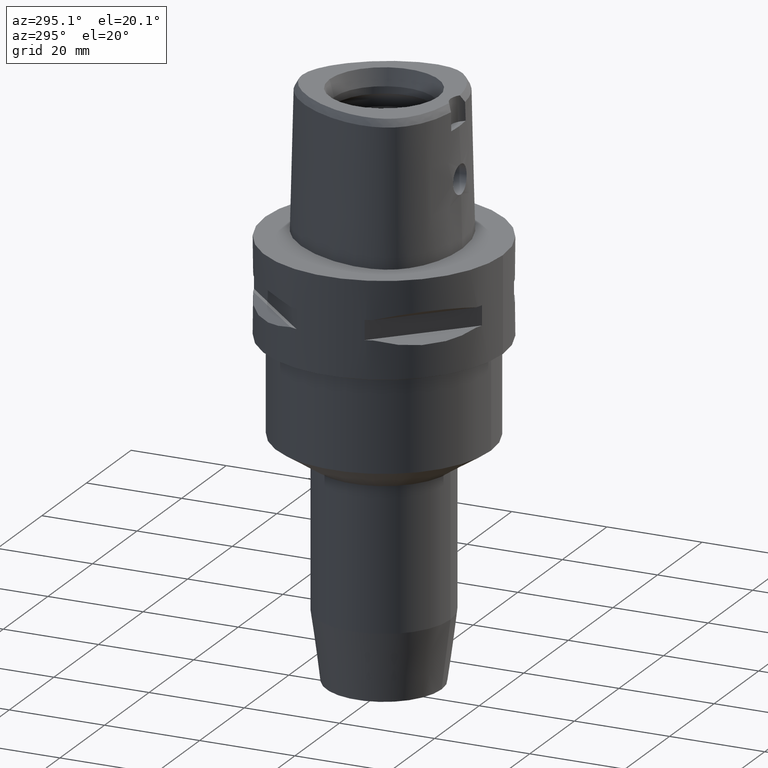
[diagram: clean part render]
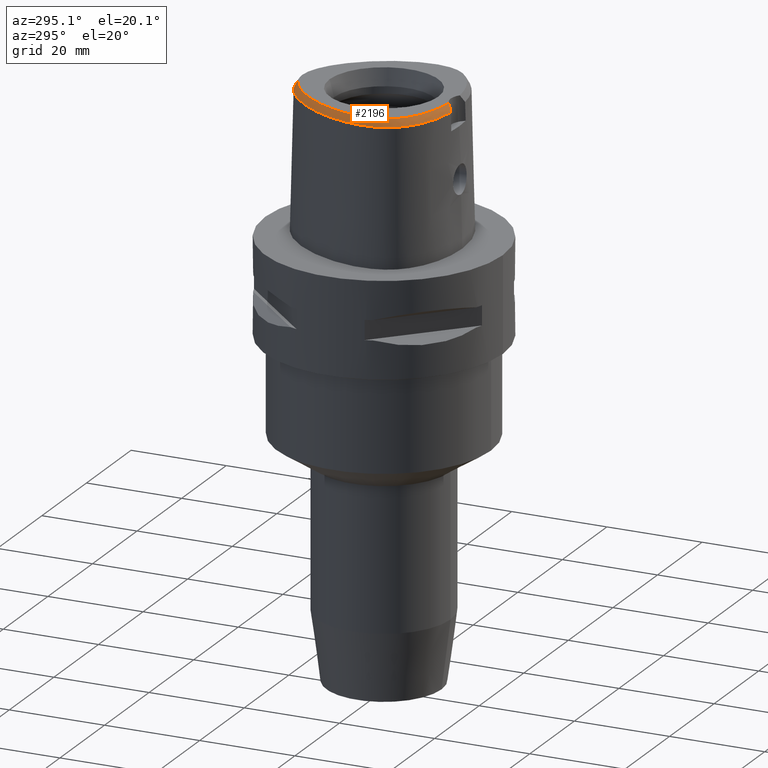
[diagram: same view with one face highlighted and labeled with its STEP entity id]
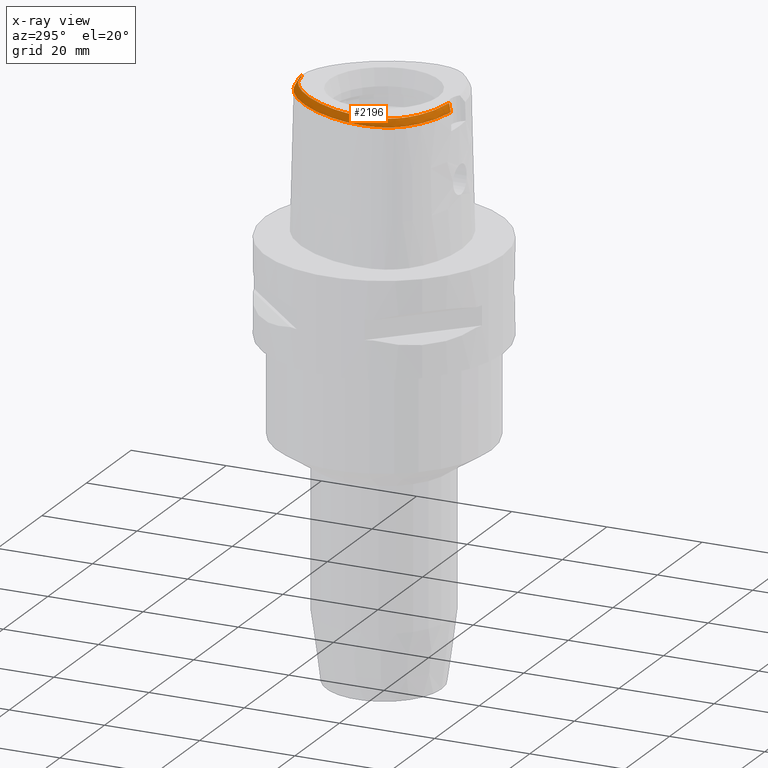
[diagram: x-ray of the same camera — body ghosted, the highlighted face saturated]
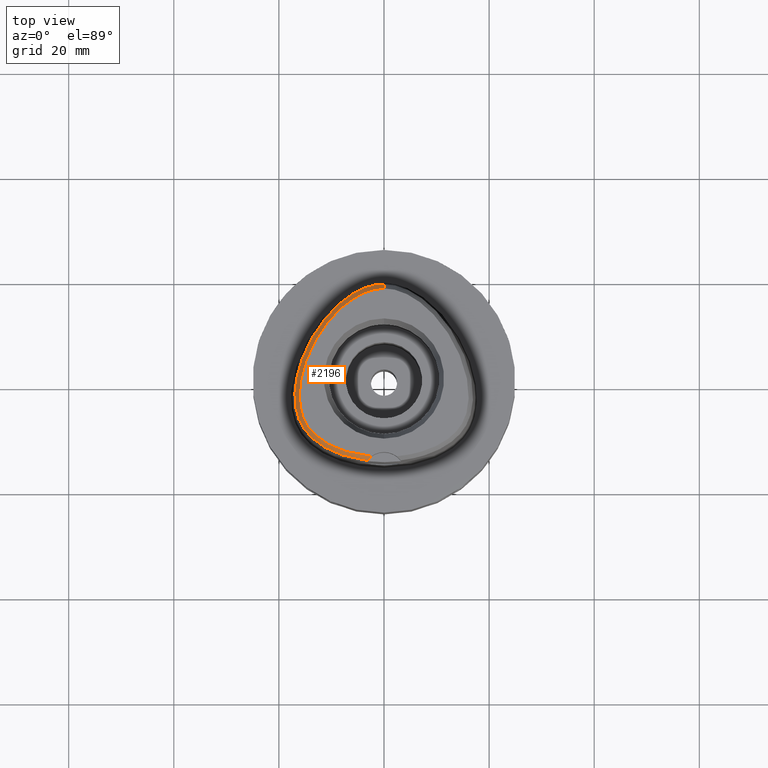
[diagram: same view with one face highlighted and labeled with its STEP entity id]
A machine part, auxiliary view. The second image highlights one B-rep face of the part: STEP entity #2196.
The next image is the same camera in x-ray: the body ghosted, the highlighted face saturated — about 0% of this face is hidden behind the body in this view.
A second angle (top view) of the same face is appended — the face is thin or edge-on in the first view.
In plain terms, the highlighted face is a freeform B-spline surface patch.
Its self-contained STEP definition (entity closure, byte-faithful):
#26=CARTESIAN_POINT('',(-2.406542353495E0,-1.480491723099E1,3.E1));
#27=CARTESIAN_POINT('',(-3.124280308598E0,-1.473992819785E1,3.E1));
#28=CARTESIAN_POINT('',(-4.482129191360E0,-1.455857893085E1,3.E1));
#29=CARTESIAN_POINT('',(-6.327445403866E0,-1.415782555515E1,3.E1));
#30=CARTESIAN_POINT('',(-7.870243883043E0,-1.369377426672E1,3.E1));
#31=CARTESIAN_POINT('',(-9.231467156002E0,-1.317094065721E1,3.E1));
#32=CARTESIAN_POINT('',(-1.045733358478E1,-1.258499059572E1,3.E1));
#33=CARTESIAN_POINT('',(-1.157007313943E1,-1.193148468521E1,3.E1));
#34=CARTESIAN_POINT('',(-1.255251033142E1,-1.122226372478E1,3.E1));
#35=CARTESIAN_POINT('',(-1.337000972227E1,-1.049821937481E1,3.E1));
#36=CARTESIAN_POINT('',(-1.404567229894E1,-9.764465763848E0,3.E1));
#37=CARTESIAN_POINT('',(-1.459644356703E1,-9.024038488283E0,3.E1));
#38=CARTESIAN_POINT('',(-1.504304321584E1,-8.266957290498E0,3.E1));
#39=CARTESIAN_POINT('',(-1.541927914616E1,-7.438179944706E0,3.E1));
#40=CARTESIAN_POINT('',(-1.572942560697E1,-6.506082303537E0,3.E1));
#41=CARTESIAN_POINT('',(-1.596206562176E1,-5.462853032253E0,3.E1));
#42=CARTESIAN_POINT('',(-1.610455206020E1,-4.273801693991E0,3.E1));
#43=CARTESIAN_POINT('',(-1.613413387002E1,-2.992943590306E0,3.E1));
#44=CARTESIAN_POINT('',(-1.604925454505E1,-1.655013683737E0,3.E1));
#45=CARTESIAN_POINT('',(-1.584443506800E1,-2.321231851405E-1,3.E1));
#46=CARTESIAN_POINT('',(-1.550101450717E1,1.313413412533E0,3.E1));
#47=CARTESIAN_POINT('',(-1.496782748450E1,3.066927206117E0,3.E1));
#48=CARTESIAN_POINT('',(-1.420409256541E1,4.992995084572E0,3.E1));
#49=CARTESIAN_POINT('',(-1.325457255906E1,6.910954296078E0,3.E1));
#50=CARTESIAN_POINT('',(-1.214712916254E1,8.759300706921E0,3.E1));
#51=CARTESIAN_POINT('',(-1.091556623872E1,1.048294531037E1,3.E1));
#52=CARTESIAN_POINT('',(-9.628013595519E0,1.200251913774E1,3.E1));
#53=CARTESIAN_POINT('',(-8.411861044418E0,1.322342138695E1,3.E1));
#54=CARTESIAN_POINT('',(-7.272356739526E0,1.420775433743E1,3.E1));
#55=CARTESIAN_POINT('',(-6.143941686487E0,1.504030886902E1,3.E1));
#56=CARTESIAN_POINT('',(-5.018973255518E0,1.573434444863E1,3.E1));
#57=CARTESIAN_POINT('',(-3.904394160620E0,1.629034370854E1,3.E1));
#58=CARTESIAN_POINT('',(-2.836073640816E0,1.669857766875E1,3.E1));
#59=CARTESIAN_POINT('',(-1.839809277755E0,1.696769935325E1,3.E1));
#60=CARTESIAN_POINT('',(-9.009153707972E-1,1.712038212244E1,3.E1));
#61=CARTESIAN_POINT('',(-2.958620069494E-1,1.715328888648E1,3.E1));
#62=CARTESIAN_POINT('',(-6.301949014352E-11,1.715328888648E1,3.E1));
#175=CARTESIAN_POINT('',(-2.406542353495E0,-1.480491723099E1,3.E1));
#176=CARTESIAN_POINT('',(-2.503856434639E0,-1.487821438001E1,2.985403523738E1));
#177=CARTESIAN_POINT('',(-2.689490258159E0,-1.503207885331E1,2.954895898762E1));
#178=CARTESIAN_POINT('',(-2.939608490909E0,-1.527959822917E1,2.906287623895E1));
#179=CARTESIAN_POINT('',(-3.095067552108E0,-1.546322947160E1,2.870597118540E1));
#180=CARTESIAN_POINT('',(-3.168920966623E0,-1.555911077539E1,2.852071192347E1));
#185=CARTESIAN_POINT('',(-3.168920966623E0,-1.555911077539E1,2.852071192347E1));
#186=CARTESIAN_POINT('',(-3.884018424515E0,-1.547576349617E1,2.852068042717E1));
#187=CARTESIAN_POINT('',(-5.247695189909E0,-1.525826336469E1,2.852072903404E1));
#188=CARTESIAN_POINT('',(-7.068919529175E0,-1.481516736492E1,2.852071237294E1));
#189=CARTESIAN_POINT('',(-8.613929883140E0,-1.431004507675E1,2.852073019963E1));
#190=CARTESIAN_POINT('',(-9.995356613935E0,-1.373902700220E1,2.852071186279E1));
#191=CARTESIAN_POINT('',(-1.124982998274E1,-1.309688046516E1,2.852071937654E1));
#192=CARTESIAN_POINT('',(-1.238711608372E1,-1.238104996002E1,2.852071750255E1));
#193=CARTESIAN_POINT('',(-1.336108389170E1,-1.162936731246E1,2.852072164498E1));
#194=CARTESIAN_POINT('',(-1.417450314764E1,-1.086425323022E1,2.852072209935E1));
#195=CARTESIAN_POINT('',(-1.485394147480E1,-1.008281603057E1,2.852069333345E1));
#196=CARTESIAN_POINT('',(-1.541186317733E1,-9.290473508141E0,2.852074843830E1));
#197=CARTESIAN_POINT('',(-1.587337708806E1,-8.462915439459E0,2.852071991258E1));
#198=CARTESIAN_POINT('',(-1.626140134066E1,-7.557337614524E0,2.852071163513E1));
#199=CARTESIAN_POINT('',(-1.657667771845E1,-6.548498503859E0,2.852071897347E1));
#200=CARTESIAN_POINT('',(-1.680798800989E1,-5.428019071697E0,2.852071891157E1));
#201=CARTESIAN_POINT('',(-1.694253977910E1,-4.169586378050E0,2.852072184503E1));
#202=CARTESIAN_POINT('',(-1.695949206263E1,-2.802998814675E0,2.852071756393E1));
#203=CARTESIAN_POINT('',(-1.685344435E1,-1.375161839891E0,2.852071128356E1));
#204=CARTESIAN_POINT('',(-1.662096442905E1,1.267079546153E-1,2.852072422836E1));
#205=CARTESIAN_POINT('',(-1.624049462060E1,1.762577795572E0,2.852072177717E1));
#206=CARTESIAN_POINT('',(-1.564670362716E1,3.634253181313E0,2.852069903337E1));
#207=CARTESIAN_POINT('',(-1.483751327191E1,5.603489300116E0,2.852072652030E1));
#208=CARTESIAN_POINT('',(-1.384825157337E1,7.550865350083E0,2.852068894743E1));
#209=CARTESIAN_POINT('',(-1.270048005534E1,9.425038874084E0,2.852072872519E1));
#210=CARTESIAN_POINT('',(-1.143486269483E1,1.116436229673E1,2.852071245700E1));
#211=CARTESIAN_POINT('',(-1.010132644102E1,1.271225842705E1,2.852072030872E1));
#212=CARTESIAN_POINT('',(-8.842378725687E0,1.395492710839E1,2.852071211598E1));
#213=CARTESIAN_POINT('',(-7.654868319508E0,1.496335772709E1,2.852072067069E1));
#214=CARTESIAN_POINT('',(-6.463517638644E0,1.582517546606E1,2.852071712933E1));
#215=CARTESIAN_POINT('',(-5.272808361515E0,1.654168821671E1,2.852072805240E1));
#216=CARTESIAN_POINT('',(-4.105550930552E0,1.710690949129E1,2.852071405181E1));
#217=CARTESIAN_POINT('',(-2.992312216150E0,1.751912247566E1,2.852072610469E1));
#218=CARTESIAN_POINT('',(-1.943886603984E0,1.779364421749E1,2.852074324146E1));
#219=CARTESIAN_POINT('',(-9.440104920872E-1,1.794938959237E1,2.852060108563E1));
#220=CARTESIAN_POINT('',(-3.160365891633E-1,1.798202997910E1,2.852071728568E1));
#221=CARTESIAN_POINT('',(-3.033118856553E-11,1.798202997910E1,
2.852071728569E1));
#226=DIRECTION('',(-1.927820962693E-11,-4.887572537803E-1,8.724198226067E-1));
#227=VECTOR('',#226,1.695608783729E0);
#228=CARTESIAN_POINT('',(-3.033118856553E-11,1.798202997910E1,
2.852071728569E1));
#229=LINE('',#228,#227);
#233=CARTESIAN_POINT('',(-3.168920966623E0,-1.555911077539E1,2.852071192347E1));
#1521=CARTESIAN_POINT('',(-2.406542353497E0,-1.480491723099E1,3.E1));
#1523=VERTEX_POINT('',#1521);
#1524=VERTEX_POINT('',#62);
#1533=VERTEX_POINT('',#233);
#1534=CARTESIAN_POINT('',(-3.033118856553E-11,1.798202997910E1,
2.852071728569E1));
#1535=VERTEX_POINT('',#1534);
#1964=CARTESIAN_POINT('',(4.589239217477E-1,1.705930169011E1,3.014606763203E1));
#1965=CARTESIAN_POINT('',(4.771634375231E-1,1.738959599961E1,2.955557378988E1));
#1966=CARTESIAN_POINT('',(4.954029532985E-1,1.771989030912E1,2.896507994772E1));
#1967=CARTESIAN_POINT('',(5.136424690739E-1,1.805018461862E1,2.837458610557E1));
#1968=CARTESIAN_POINT('',(3.021121023241E-1,1.706734038862E1,3.014606760084E1));
#1969=CARTESIAN_POINT('',(3.143282988974E-1,1.739798210280E1,2.955557388480E1));
#1970=CARTESIAN_POINT('',(3.265444954708E-1,1.772862381699E1,2.896508016875E1));
#1971=CARTESIAN_POINT('',(3.387606920441E-1,1.805926553117E1,2.837458645271E1));
#1972=CARTESIAN_POINT('',(-4.062840995377E-2,1.707663431066E1,
3.014606757844E1));
#1973=CARTESIAN_POINT('',(-4.217900351867E-2,1.740766328035E1,
2.955557395296E1));
#1974=CARTESIAN_POINT('',(-4.372959708356E-2,1.773869225005E1,
2.896508032747E1));
#1975=CARTESIAN_POINT('',(-4.528019064846E-2,1.806972121974E1,
2.837458670199E1));
#1976=CARTESIAN_POINT('',(-5.621756140505E-1,1.705843619110E1,
3.014606762231E1));
#1977=CARTESIAN_POINT('',(-5.853204075292E-1,1.738870688866E1,
2.955557381950E1));
#1978=CARTESIAN_POINT('',(-6.084652010080E-1,1.771897758622E1,
2.896508001669E1));
#1979=CARTESIAN_POINT('',(-6.316099944867E-1,1.804924828379E1,
2.837458621389E1));
#1980=CARTESIAN_POINT('',(-1.148807938986E0,1.699751578038E1,3.014606762810E1));
#1981=CARTESIAN_POINT('',(-1.194665299434E0,1.732539664583E1,2.955557380186E1));
#1982=CARTESIAN_POINT('',(-1.240522659881E0,1.765327751128E1,2.896507997561E1));
#1983=CARTESIAN_POINT('',(-1.286380020328E0,1.798115837673E1,2.837458614937E1));
#1984=CARTESIAN_POINT('',(-1.756045937615E0,1.689181558889E1,3.014606757344E1));
#1985=CARTESIAN_POINT('',(-1.824101746872E0,1.721581009458E1,2.955557396817E1));
#1986=CARTESIAN_POINT('',(-1.892157556129E0,1.753980460028E1,2.896508036291E1));
#1987=CARTESIAN_POINT('',(-1.960213365386E0,1.786379910597E1,2.837458675764E1));
#1988=CARTESIAN_POINT('',(-2.389483928325E0,1.673708003080E1,3.014606761979E1));
#1989=CARTESIAN_POINT('',(-2.479056227867E0,1.705578794601E1,2.955557382715E1));
#1990=CARTESIAN_POINT('',(-2.568628527408E0,1.737449586122E1,2.896508003451E1));
#1991=CARTESIAN_POINT('',(-2.658200826949E0,1.769320377643E1,2.837458624187E1));
#1992=CARTESIAN_POINT('',(-3.049892749213E0,1.652850246772E1,3.014606769442E1));
#1993=CARTESIAN_POINT('',(-3.160196292899E0,1.684063289022E1,2.955557360011E1));
#1994=CARTESIAN_POINT('',(-3.270499836585E0,1.715276331273E1,2.896507950579E1));
#1995=CARTESIAN_POINT('',(-3.380803380272E0,1.746489373523E1,2.837458541148E1));
#1996=CARTESIAN_POINT('',(-3.739707454830E0,1.626022390672E1,3.014606751770E1));
#1997=CARTESIAN_POINT('',(-3.869891556728E0,1.656458846622E1,2.955557413775E1));
#1998=CARTESIAN_POINT('',(-4.000075658626E0,1.686895302573E1,2.896508075779E1));
#1999=CARTESIAN_POINT('',(-4.130259760524E0,1.717331758524E1,2.837458737783E1));
#2000=CARTESIAN_POINT('',(-4.461786381193E0,1.592503528634E1,3.014606714188E1));
#2001=CARTESIAN_POINT('',(-4.610854850908E0,1.622059792561E1,2.955557528123E1));
#2002=CARTESIAN_POINT('',(-4.759923320623E0,1.651616056487E1,2.896508342057E1));
#2003=CARTESIAN_POINT('',(-4.908991790338E0,1.681172320414E1,2.837459155991E1));
#2004=CARTESIAN_POINT('',(-5.216571988594E0,1.551578810815E1,3.014606702734E1));
#2005=CARTESIAN_POINT('',(-5.383528418402E0,1.580161661174E1,2.955557562976E1));
#2006=CARTESIAN_POINT('',(-5.550484848210E0,1.608744511533E1,2.896508423218E1));
#2007=CARTESIAN_POINT('',(-5.717441278019E0,1.637327361892E1,2.837459283460E1));
#2008=CARTESIAN_POINT('',(-6.001900839393E0,1.502591021893E1,3.014606725617E1));
#2009=CARTESIAN_POINT('',(-6.185720720064E0,1.530118548497E1,2.955557493350E1));
#2010=CARTESIAN_POINT('',(-6.369540600735E0,1.557646075102E1,2.896508261082E1));
#2011=CARTESIAN_POINT('',(-6.553360481406E0,1.585173601706E1,2.837459028815E1));
#2012=CARTESIAN_POINT('',(-6.813333767988E0,1.445006178676E1,3.014606765864E1));
#2013=CARTESIAN_POINT('',(-7.012997946743E0,1.471405984806E1,2.955557370897E1));
#2014=CARTESIAN_POINT('',(-7.212662125498E0,1.497805790936E1,2.896507975931E1));
#2015=CARTESIAN_POINT('',(-7.412326304253E0,1.524205597065E1,2.837458580965E1));
#2016=CARTESIAN_POINT('',(-7.647582973534E0,1.378179698792E1,3.014606755363E1));
#2017=CARTESIAN_POINT('',(-7.862083420111E0,1.403387801428E1,2.955557402845E1));
#2018=CARTESIAN_POINT('',(-8.076583866689E0,1.428595904064E1,2.896508050326E1));
#2019=CARTESIAN_POINT('',(-8.291084313266E0,1.453804006700E1,2.837458697808E1));
#2020=CARTESIAN_POINT('',(-8.500451953816E0,1.301506044805E1,3.014606736919E1));
#2021=CARTESIAN_POINT('',(-8.728765177906E0,1.325469200917E1,2.955557458964E1));
#2022=CARTESIAN_POINT('',(-8.957078401996E0,1.349432357029E1,2.896508181009E1));
#2023=CARTESIAN_POINT('',(-9.185391626086E0,1.373395513141E1,2.837458903054E1));
#2024=CARTESIAN_POINT('',(-9.361199438573E0,1.214969638013E1,3.014606744072E1));
#2025=CARTESIAN_POINT('',(-9.602360188752E0,1.237638533707E1,2.955557437198E1));
#2026=CARTESIAN_POINT('',(-9.843520938932E0,1.260307429400E1,2.896508130323E1));
#2027=CARTESIAN_POINT('',(-1.008468168911E1,1.282976325094E1,2.837458823448E1));
#2028=CARTESIAN_POINT('',(-1.021647140019E1,1.119002785690E1,3.014606764958E1));
#2029=CARTESIAN_POINT('',(-1.046956249638E1,1.140330715908E1,2.955557373651E1));
#2030=CARTESIAN_POINT('',(-1.072265359258E1,1.161658646127E1,2.896507982344E1));
#2031=CARTESIAN_POINT('',(-1.097574468877E1,1.182986576345E1,2.837458591037E1));
#2032=CARTESIAN_POINT('',(-1.105366809748E1,1.014182833152E1,3.014606753605E1));
#2033=CARTESIAN_POINT('',(-1.131779523682E1,1.034127126510E1,2.955557408195E1));
#2034=CARTESIAN_POINT('',(-1.158192237616E1,1.054071419869E1,2.896508062784E1));
#2035=CARTESIAN_POINT('',(-1.184604951551E1,1.074015713227E1,2.837458717374E1));
#2036=CARTESIAN_POINT('',(-1.185928016106E1,9.014736968872E0,3.014606748887E1));
#2037=CARTESIAN_POINT('',(-1.213359137969E1,9.199918733822E0,2.955557422550E1));
#2038=CARTESIAN_POINT('',(-1.240790259831E1,9.385100498772E0,2.896508096213E1));
#2039=CARTESIAN_POINT('',(-1.268221381694E1,9.570282263722E0,2.837458769877E1));
#2040=CARTESIAN_POINT('',(-1.261630581567E1,7.827396562964E0,3.014606760207E1));
#2041=CARTESIAN_POINT('',(-1.289998216810E1,7.997885096357E0,2.955557388106E1));
#2042=CARTESIAN_POINT('',(-1.318365852053E1,8.168373629749E0,2.896508016006E1));
#2043=CARTESIAN_POINT('',(-1.346733487297E1,8.338862163141E0,2.837458643905E1));
#2044=CARTESIAN_POINT('',(-1.331210267030E1,6.597285589285E0,3.014606756977E1));
#2045=CARTESIAN_POINT('',(-1.360436698396E1,6.752592743745E0,2.955557397934E1));
#2046=CARTESIAN_POINT('',(-1.389663129761E1,6.907899898206E0,2.896508038890E1));
#2047=CARTESIAN_POINT('',(-1.418889561127E1,7.063207052667E0,2.837458679847E1));
#2048=CARTESIAN_POINT('',(-1.393736735049E1,5.341347009540E0,3.014606751321E1));
#2049=CARTESIAN_POINT('',(-1.423740958872E1,5.481039245897E0,2.955557415143E1));
#2050=CARTESIAN_POINT('',(-1.453745182695E1,5.620731482254E0,2.896508078965E1));
#2051=CARTESIAN_POINT('',(-1.483749406519E1,5.760423718611E0,2.837458742787E1));
#2052=CARTESIAN_POINT('',(-1.448303032605E1,4.081853429295E0,3.014606761905E1));
#2053=CARTESIAN_POINT('',(-1.479006636371E1,4.205426881974E0,2.955557382941E1));
#2054=CARTESIAN_POINT('',(-1.509710240136E1,4.329000334652E0,2.896508003977E1));
#2055=CARTESIAN_POINT('',(-1.540413843902E1,4.452573787331E0,2.837458625014E1));
#2056=CARTESIAN_POINT('',(-1.494351022053E1,2.840692792280E0,3.014606760206E1));
#2057=CARTESIAN_POINT('',(-1.525674697938E1,2.947589651795E0,2.955557388111E1));
#2058=CARTESIAN_POINT('',(-1.556998373822E1,3.054486511310E0,2.896508016017E1));
#2059=CARTESIAN_POINT('',(-1.588322049707E1,3.161383370825E0,2.837458643922E1));
#2060=CARTESIAN_POINT('',(-1.531846819872E1,1.632891578501E0,3.014606728628E1));
#2061=CARTESIAN_POINT('',(-1.563706592697E1,1.722574468793E0,2.955557484189E1));
#2062=CARTESIAN_POINT('',(-1.595566365523E1,1.812257359085E0,2.896508239749E1));
#2063=CARTESIAN_POINT('',(-1.627426138348E1,1.901940249377E0,2.837458995310E1));
#2064=CARTESIAN_POINT('',(-1.560987195784E1,4.719144669458E-1,
3.014606724625E1));
#2065=CARTESIAN_POINT('',(-1.593295715421E1,5.438010546152E-1,
2.955557496368E1));
#2066=CARTESIAN_POINT('',(-1.625604235059E1,6.156876422845E-1,
2.896508268111E1));
#2067=CARTESIAN_POINT('',(-1.657912754697E1,6.875742299538E-1,
2.837459039854E1));
#2068=CARTESIAN_POINT('',(-1.582143526896E1,-6.294839144265E-1,
3.014606750670E1));
#2069=CARTESIAN_POINT('',(-1.614807622287E1,-5.759791666535E-1,
2.955557417123E1));
#2070=CARTESIAN_POINT('',(-1.647471717679E1,-5.224744188805E-1,
2.896508083577E1));
#2071=CARTESIAN_POINT('',(-1.680135813070E1,-4.689696711075E-1,
2.837458750030E1));
#2072=CARTESIAN_POINT('',(-1.595940317007E1,-1.665032174553E0,
3.014606765248E1));
#2073=CARTESIAN_POINT('',(-1.628860303853E1,-1.630535683332E0,
2.955557372769E1));
#2074=CARTESIAN_POINT('',(-1.661780290699E1,-1.596039192111E0,
2.896507980291E1));
#2075=CARTESIAN_POINT('',(-1.694700277545E1,-1.561542700890E0,
2.837458587813E1));
#2076=CARTESIAN_POINT('',(-1.603104292874E1,-2.633609564887E0,
3.014606760533E1));
#2077=CARTESIAN_POINT('',(-1.636171552055E1,-2.618643191223E0,
2.955557387113E1));
#2078=CARTESIAN_POINT('',(-1.669238811237E1,-2.603676817560E0,
2.896508013694E1));
#2079=CARTESIAN_POINT('',(-1.702306070418E1,-2.588710443896E0,
2.837458640274E1));
#2080=CARTESIAN_POINT('',(-1.604355954477E1,-3.534613962801E0,
3.014606758107E1));
#2081=CARTESIAN_POINT('',(-1.637454099120E1,-3.539720092955E0,
2.955557394498E1));
#2082=CARTESIAN_POINT('',(-1.670552243762E1,-3.544826223109E0,
2.896508030889E1));
#2083=CARTESIAN_POINT('',(-1.703650388405E1,-3.549932353263E0,
2.837458667280E1));
#2084=CARTESIAN_POINT('',(-1.600386878937E1,-4.369987092503E0,
3.014606751303E1));
#2085=CARTESIAN_POINT('',(-1.633390673604E1,-4.395598081921E0,
2.955557415198E1));
#2086=CARTESIAN_POINT('',(-1.666394468270E1,-4.421209071339E0,
2.896508079093E1));
#2087=CARTESIAN_POINT('',(-1.699398262937E1,-4.446820060757E0,
2.837458742988E1));
#2088=CARTESIAN_POINT('',(-1.591841593839E1,-5.142336147147E0,
3.014606759563E1));
#2089=CARTESIAN_POINT('',(-1.624617622280E1,-5.188821740647E0,
2.955557390066E1));
#2090=CARTESIAN_POINT('',(-1.657393650720E1,-5.235307334148E0,
2.896508020569E1));
#2091=CARTESIAN_POINT('',(-1.690169679161E1,-5.281792927648E0,
2.837458651072E1));
#2092=CARTESIAN_POINT('',(-1.579284465989E1,-5.855381893573E0,
3.014606762062E1));
#2093=CARTESIAN_POINT('',(-1.611691212834E1,-5.923016076839E0,
2.955557382462E1));
#2094=CARTESIAN_POINT('',(-1.644097959680E1,-5.990650260104E0,
2.896508002862E1));
#2095=CARTESIAN_POINT('',(-1.676504706525E1,-6.058284443370E0,
2.837458623262E1));
#2096=CARTESIAN_POINT('',(-1.563176695484E1,-6.514311714755E0,
3.014606761136E1));
#2097=CARTESIAN_POINT('',(-1.595066484923E1,-6.603217105771E0,
2.955557385279E1));
#2098=CARTESIAN_POINT('',(-1.626956274363E1,-6.692122496787E0,
2.896508009422E1));
#2099=CARTESIAN_POINT('',(-1.658846063803E1,-6.781027887802E0,
2.837458633565E1));
#2100=CARTESIAN_POINT('',(-1.543901061411E1,-7.123603479018E0,
3.014606757882E1));
#2101=CARTESIAN_POINT('',(-1.575120982130E1,-7.233775075570E0,
2.955557395181E1));
#2102=CARTESIAN_POINT('',(-1.606340902849E1,-7.343946672122E0,
2.896508032479E1));
#2103=CARTESIAN_POINT('',(-1.637560823569E1,-7.454118268674E0,
2.837458669778E1));
#2104=CARTESIAN_POINT('',(-1.521711080092E1,-7.688628602828E0,
3.014606756964E1));
#2105=CARTESIAN_POINT('',(-1.552105266650E1,-7.819887135189E0,
2.955557397972E1));
#2106=CARTESIAN_POINT('',(-1.582499453208E1,-7.951145667550E0,
2.896508038979E1));
#2107=CARTESIAN_POINT('',(-1.612893639766E1,-8.082404199910E0,
2.837458679987E1));
#2108=CARTESIAN_POINT('',(-1.496873659017E1,-8.212247512153E0,
3.014606763488E1));
#2109=CARTESIAN_POINT('',(-1.526288916935E1,-8.364206377603E0,
2.955557378125E1));
#2110=CARTESIAN_POINT('',(-1.555704174852E1,-8.516165243053E0,
2.896507992763E1));
#2111=CARTESIAN_POINT('',(-1.585119432770E1,-8.668124108503E0,
2.837458607400E1));
#2112=CARTESIAN_POINT('',(-1.469329792242E1,-8.702035653092E0,
3.014606759175E1));
#2113=CARTESIAN_POINT('',(-1.497597153349E1,-8.874413839438E0,
2.955557391248E1));
#2114=CARTESIAN_POINT('',(-1.525864514455E1,-9.046792025784E0,
2.896508023321E1));
#2115=CARTESIAN_POINT('',(-1.554131875562E1,-9.219170212130E0,
2.837458655394E1));
#2116=CARTESIAN_POINT('',(-1.437932952610E1,-9.179280562796E0,
3.014606761358E1));
#2117=CARTESIAN_POINT('',(-1.464932954746E1,-9.370882131644E0,
2.955557384602E1));
#2118=CARTESIAN_POINT('',(-1.491932956882E1,-9.562483700493E0,
2.896508007845E1));
#2119=CARTESIAN_POINT('',(-1.518932959017E1,-9.754085269341E0,
2.837458631088E1));
#2120=CARTESIAN_POINT('',(-1.401714700033E1,-9.655007395280E0,
3.014606755596E1));
#2121=CARTESIAN_POINT('',(-1.427335965199E1,-9.864680022944E0,
2.955557402134E1));
#2122=CARTESIAN_POINT('',(-1.452957230366E1,-1.007435265061E1,
2.896508048672E1));
#2123=CARTESIAN_POINT('',(-1.478578495532E1,-1.028402527827E1,
2.837458695209E1));
#2124=CARTESIAN_POINT('',(-1.360366820561E1,-1.012747698381E1,
3.014606760927E1));
#2125=CARTESIAN_POINT('',(-1.384509579514E1,-1.035400464891E1,
2.955557385915E1));
#2126=CARTESIAN_POINT('',(-1.408652338467E1,-1.058053231401E1,
2.896508010903E1));
#2127=CARTESIAN_POINT('',(-1.432795097420E1,-1.080705997911E1,
2.837458635891E1));
#2128=CARTESIAN_POINT('',(-1.313329843107E1,-1.059734978226E1,
3.014606761568E1));
#2129=CARTESIAN_POINT('',(-1.335912389705E1,-1.083942180609E1,
2.955557383965E1));
#2130=CARTESIAN_POINT('',(-1.358494936303E1,-1.108149382991E1,
2.896508006362E1));
#2131=CARTESIAN_POINT('',(-1.381077482901E1,-1.132356585374E1,
2.837458628758E1));
#2132=CARTESIAN_POINT('',(-1.260025529839E1,-1.106394944771E1,
3.014606761614E1));
#2133=CARTESIAN_POINT('',(-1.280980327647E1,-1.132022960674E1,
2.955557383826E1));
#2134=CARTESIAN_POINT('',(-1.301935125455E1,-1.157650976577E1,
2.896508006037E1));
#2135=CARTESIAN_POINT('',(-1.322889923263E1,-1.183278992481E1,
2.837458628249E1));
#2136=CARTESIAN_POINT('',(-1.199803300363E1,-1.152602128200E1,
3.014606752992E1));
#2137=CARTESIAN_POINT('',(-1.219077428024E1,-1.179515683600E1,
2.955557410059E1));
#2138=CARTESIAN_POINT('',(-1.238351555686E1,-1.206429239E1,2.896508067125E1));
#2139=CARTESIAN_POINT('',(-1.257625683347E1,-1.233342794400E1,
2.837458724191E1));
#2140=CARTESIAN_POINT('',(-1.132008066298E1,-1.198121081966E1,
3.014606754728E1));
#2141=CARTESIAN_POINT('',(-1.149563971513E1,-1.226184553464E1,
2.955557404777E1));
#2142=CARTESIAN_POINT('',(-1.167119876729E1,-1.254248024962E1,
2.896508054826E1));
#2143=CARTESIAN_POINT('',(-1.184675781944E1,-1.282311496460E1,
2.837458704874E1));
#2144=CARTESIAN_POINT('',(-1.056110733657E1,-1.242537947419E1,
3.014606760993E1));
#2145=CARTESIAN_POINT('',(-1.071919065307E1,-1.271620603585E1,
2.955557385715E1));
#2146=CARTESIAN_POINT('',(-1.087727396957E1,-1.300703259751E1,
2.896508010438E1));
#2147=CARTESIAN_POINT('',(-1.103535728606E1,-1.329785915916E1,
2.837458635161E1));
#2148=CARTESIAN_POINT('',(-9.715421921455E0,-1.285396584523E1,
3.014606762630E1));
#2149=CARTESIAN_POINT('',(-9.855889278186E0,-1.315368787459E1,
2.955557380737E1));
#2150=CARTESIAN_POINT('',(-9.996356634916E0,-1.345340990395E1,
2.896507998845E1));
#2151=CARTESIAN_POINT('',(-1.013682399165E1,-1.375313193332E1,
2.837458616953E1));
#2152=CARTESIAN_POINT('',(-8.779623225487E0,-1.326074171082E1,
3.014606760137E1));
#2153=CARTESIAN_POINT('',(-8.902366024216E0,-1.356813887121E1,
2.955557388322E1));
#2154=CARTESIAN_POINT('',(-9.025108822946E0,-1.387553603159E1,
2.896508016507E1));
#2155=CARTESIAN_POINT('',(-9.147851621676E0,-1.418293319198E1,
2.837458644693E1));
#2156=CARTESIAN_POINT('',(-7.750756044997E0,-1.363898685356E1,
3.014606731170E1));
#2157=CARTESIAN_POINT('',(-7.855788860016E0,-1.395286811971E1,
2.955557476455E1));
#2158=CARTESIAN_POINT('',(-7.960821675036E0,-1.426674938585E1,
2.896508221741E1));
#2159=CARTESIAN_POINT('',(-8.065854490055E0,-1.458063065200E1,
2.837458967026E1));
#2160=CARTESIAN_POINT('',(-6.628633839840E0,-1.398095409318E1,
3.014606724781E1));
#2161=CARTESIAN_POINT('',(-6.715992593733E0,-1.430019888844E1,
2.955557495896E1));
#2162=CARTESIAN_POINT('',(-6.803351347625E0,-1.461944368371E1,
2.896508267011E1));
#2163=CARTESIAN_POINT('',(-6.890710101518E0,-1.493868847897E1,
2.837459038125E1));
#2164=CARTESIAN_POINT('',(-5.420621925816E0,-1.427704546601E1,
3.014606750391E1));
#2165=CARTESIAN_POINT('',(-5.490373757087E0,-1.460058824705E1,
2.955557417975E1));
#2166=CARTESIAN_POINT('',(-5.560125588359E0,-1.492413102810E1,
2.896508085560E1));
#2167=CARTESIAN_POINT('',(-5.629877419630E0,-1.524767380914E1,
2.837458753145E1));
#2168=CARTESIAN_POINT('',(-4.137587918722E0,-1.451832659808E1,
3.014606765331E1));
#2169=CARTESIAN_POINT('',(-4.189770581019E0,-1.484515895416E1,
2.955557372518E1));
#2170=CARTESIAN_POINT('',(-4.241953243316E0,-1.517199131023E1,
2.896507979706E1));
#2171=CARTESIAN_POINT('',(-4.294135905613E0,-1.549882366630E1,
2.837458586894E1));
#2172=CARTESIAN_POINT('',(-3.113654928649E0,-1.465434343566E1,
3.014606754612E1));
#2173=CARTESIAN_POINT('',(-3.152551406530E0,-1.498293253787E1,
2.955557405130E1));
#2174=CARTESIAN_POINT('',(-3.191447884411E0,-1.531152164009E1,
2.896508055649E1));
#2175=CARTESIAN_POINT('',(-3.230344362293E0,-1.564011074230E1,
2.837458706167E1));
#2176=CARTESIAN_POINT('',(-2.368643380905E0,-1.472737181031E1,
3.014606752100E1));
#2177=CARTESIAN_POINT('',(-2.398087797648E0,-1.505688732829E1,
2.955557412775E1));
#2178=CARTESIAN_POINT('',(-2.427532214390E0,-1.538640284626E1,
2.896508073450E1));
#2179=CARTESIAN_POINT('',(-2.456976631132E0,-1.571591836423E1,
2.837458734126E1));
#2180=CARTESIAN_POINT('',(-2.079214427359E0,-1.475091258796E1,
3.014606752015E1));
#2181=CARTESIAN_POINT('',(-2.105020781599E0,-1.508072386527E1,
2.955557413033E1));
#2182=CARTESIAN_POINT('',(-2.130827135839E0,-1.541053514257E1,
2.896508074051E1));
#2183=CARTESIAN_POINT('',(-2.156633490078E0,-1.574034641988E1,
2.837458735069E1));
#2184=CARTESIAN_POINT('',(-1.918405020981E0,-1.476251065124E1,
3.014606752205E1));
#2185=CARTESIAN_POINT('',(-1.942198150463E0,-1.509246709972E1,
2.955557412451E1));
#2186=CARTESIAN_POINT('',(-1.965991279945E0,-1.542242354821E1,
2.896508072697E1));
#2187=CARTESIAN_POINT('',(-1.989784409428E0,-1.575237999669E1,
2.837458732943E1));
#2188=B_SPLINE_SURFACE_WITH_KNOTS('',3,3,((#1964,#1965,#1966,#1967),(#1968,
#1969,#1970,#1971),(#1972,#1973,#1974,#1975),(#1976,#1977,#1978,#1979),(#1980,
#1981,#1982,#1983),(#1984,#1985,#1986,#1987),(#1988,#1989,#1990,#1991),(#1992,
#1993,#1994,#1995),(#1996,#1997,#1998,#1999),(#2000,#2001,#2002,#2003),(#2004,
#2005,#2006,#2007),(#2008,#2009,#2010,#2011),(#2012,#2013,#2014,#2015),(#2016,
#2017,#2018,#2019),(#2020,#2021,#2022,#2023),(#2024,#2025,#2026,#2027),(#2028,
#2029,#2030,#2031),(#2032,#2033,#2034,#2035),(#2036,#2037,#2038,#2039),(#2040,
#2041,#2042,#2043),(#2044,#2045,#2046,#2047),(#2048,#2049,#2050,#2051),(#2052,
#2053,#2054,#2055),(#2056,#2057,#2058,#2059),(#2060,#2061,#2062,#2063),(#2064,
#2065,#2066,#2067),(#2068,#2069,#2070,#2071),(#2072,#2073,#2074,#2075),(#2076,
#2077,#2078,#2079),(#2080,#2081,#2082,#2083),(#2084,#2085,#2086,#2087),(#2088,
#2089,#2090,#2091),(#2092,#2093,#2094,#2095),(#2096,#2097,#2098,#2099),(#2100,
#2101,#2102,#2103),(#2104,#2105,#2106,#2107),(#2108,#2109,#2110,#2111),(#2112,
#2113,#2114,#2115),(#2116,#2117,#2118,#2119),(#2120,#2121,#2122,#2123),(#2124,
#2125,#2126,#2127),(#2128,#2129,#2130,#2131),(#2132,#2133,#2134,#2135),(#2136,
#2137,#2138,#2139),(#2140,#2141,#2142,#2143),(#2144,#2145,#2146,#2147),(#2148,
#2149,#2150,#2151),(#2152,#2153,#2154,#2155),(#2156,#2157,#2158,#2159),(#2160,
#2161,#2162,#2163),(#2164,#2165,#2166,#2167),(#2168,#2169,#2170,#2171),(#2172,
#2173,#2174,#2175),(#2176,#2177,#2178,#2179),(#2180,#2181,#2182,#2183),(#2184,
#2185,#2186,#2187)),.UNSPECIFIED.,.F.,.F.,.F.,(4,1,1,1,1,1,1,1,1,1,1,1,1,1,1,1,
1,1,1,1,1,1,1,1,1,1,1,1,1,1,1,1,1,1,1,1,1,1,1,1,1,1,1,1,1,1,1,1,1,1,1,1,1,4),(4,
4),(-1.581534407490E-2,0.E0,1.988866185211E-2,3.977732370550E-2,
5.966598555889E-2,7.955464741228E-2,9.944330926567E-2,1.193319711190E-1,
1.392206329725E-1,1.591092948259E-1,1.789979566792E-1,1.988866185326E-1,
2.187752803860E-1,2.386639422394E-1,2.585526040928E-1,2.784412659462E-1,
2.983299277995E-1,3.182185896530E-1,3.381072515064E-1,3.579959133597E-1,
3.778845752131E-1,3.977732370665E-1,4.176618989200E-1,4.375505607733E-1,
4.574392226267E-1,4.773278844801E-1,4.972165463334E-1,5.171052081869E-1,
5.369938700403E-1,5.568825318936E-1,5.767711937470E-1,5.966598556005E-1,
6.165485174538E-1,6.364371793072E-1,6.563258411606E-1,6.762145030140E-1,
6.961031648674E-1,7.159918267208E-1,7.358804885742E-1,7.557691504275E-1,
7.756578122809E-1,7.955464741344E-1,8.154351359877E-1,8.353237978411E-1,
8.552124596945E-1,8.751011215478E-1,8.949897834013E-1,9.148784452547E-1,
9.347671071081E-1,9.546557689614E-1,9.745444308149E-1,9.944330926683E-1,1.E0,
1.006911813929E0),(-7.571306600688E-2,1.075748403086E0),.UNSPECIFIED.);
#2189=ORIENTED_EDGE('',*,*,#1725,.T.);
#2191=ORIENTED_EDGE('',*,*,#2190,.T.);
#2192=ORIENTED_EDGE('',*,*,#1957,.T.);
#2193=ORIENTED_EDGE('',*,*,#1698,.F.);
#2194=EDGE_LOOP('',(#2189,#2191,#2192,#2193));
#2195=FACE_OUTER_BOUND('',#2194,.F.);
#63=B_SPLINE_CURVE_WITH_KNOTS('',3,(#26,#27,#28,#29,#30,#31,#32,#33,#34,#35,#36,
#37,#38,#39,#40,#41,#42,#43,#44,#45,#46,#47,#48,#49,#50,#51,#52,#53,#54,#55,#56,
#57,#58,#59,#60,#61,#62),.UNSPECIFIED.,.F.,.F.,(4,1,1,1,1,1,1,1,1,1,1,1,1,1,1,1,
1,1,1,1,1,1,1,1,1,1,1,1,1,1,1,1,1,1,4),(0.E0,2.941176470588E-2,
5.882352941176E-2,8.823529411765E-2,1.176470588235E-1,1.470588235294E-1,
1.764705882353E-1,2.058823529412E-1,2.352941176471E-1,2.647058823529E-1,
2.941176470588E-1,3.235294117647E-1,3.529411764706E-1,3.823529411765E-1,
4.117647058824E-1,4.411764705882E-1,4.705882352941E-1,5.E-1,5.294117647059E-1,
5.588235294118E-1,5.882352941176E-1,6.176470588235E-1,6.470588235294E-1,
6.764705882353E-1,7.058823529412E-1,7.352941176471E-1,7.647058823529E-1,
7.941176470588E-1,8.235294117647E-1,8.529411764706E-1,8.823529411765E-1,
9.117647058824E-1,9.411764705882E-1,9.705882352941E-1,1.E0),.UNSPECIFIED.);
#181=B_SPLINE_CURVE_WITH_KNOTS('',3,(#175,#176,#177,#178,#179,#180),
.UNSPECIFIED.,.F.,.F.,(4,1,1,4),(0.E0,3.333333333333E-1,6.666666666667E-1,1.E0),
.UNSPECIFIED.);
#222=B_SPLINE_CURVE_WITH_KNOTS('',3,(#185,#186,#187,#188,#189,#190,#191,#192,
#193,#194,#195,#196,#197,#198,#199,#200,#201,#202,#203,#204,#205,#206,#207,#208,
#209,#210,#211,#212,#213,#214,#215,#216,#217,#218,#219,#220,#221),.UNSPECIFIED.,
.F.,.F.,(4,1,1,1,1,1,1,1,1,1,1,1,1,1,1,1,1,1,1,1,1,1,1,1,1,1,1,1,1,1,1,1,1,1,4),
(0.E0,2.941176470588E-2,5.882352941176E-2,8.823529411765E-2,1.176470588235E-1,
1.470588235294E-1,1.764705882353E-1,2.058823529412E-1,2.352941176471E-1,
2.647058823529E-1,2.941176470588E-1,3.235294117647E-1,3.529411764706E-1,
3.823529411765E-1,4.117647058824E-1,4.411764705882E-1,4.705882352941E-1,5.E-1,
5.294117647059E-1,5.588235294118E-1,5.882352941176E-1,6.176470588235E-1,
6.470588235294E-1,6.764705882353E-1,7.058823529412E-1,7.352941176471E-1,
7.647058823529E-1,7.941176470588E-1,8.235294117647E-1,8.529411764706E-1,
8.823529411765E-1,9.117647058824E-1,9.411764705882E-1,9.705882352941E-1,1.E0),
.UNSPECIFIED.);
#1698=EDGE_CURVE('',#1523,#1524,#63,.T.);
#1725=EDGE_CURVE('',#1523,#1533,#181,.T.);
#1957=EDGE_CURVE('',#1535,#1524,#229,.T.);
#2190=EDGE_CURVE('',#1533,#1535,#222,.T.);
#2196=ADVANCED_FACE('',(#2195),#2188,.F.);